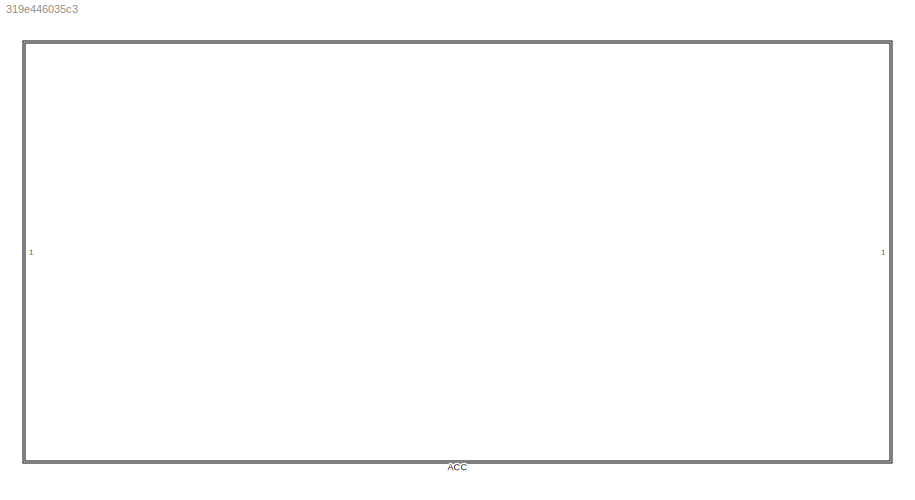
MODEL slx_319e446035c3
KIND library
CONFIG AbsTol = auto
CONFIG EnableMultiTasking = off
CONFIG FixedStep = auto
CONFIG MaxStep = auto
CONFIG MinStep = auto
CONFIG RelTol = 1e-3
CONFIG SampleTimeConstraint = Unconstrained
CONFIG SolverName = VariableStepAuto
CONFIG StartTime = 0.0
CONFIG StopTime = 10.0
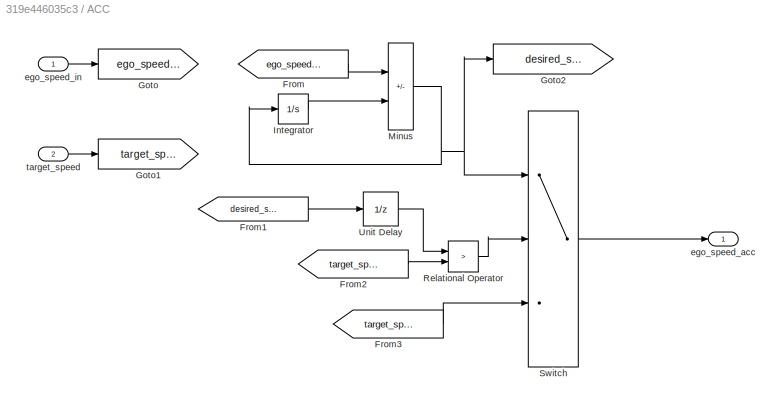
BLOCK [SubSystem] ACC
BLOCK [From] ACC/From
  GotoTag = ego_speed_in
BLOCK [From] ACC/From1
  GotoTag = desired_speed
BLOCK [From] ACC/From2
  GotoTag = target_speed
BLOCK [From] ACC/From3
  GotoTag = target_speed
BLOCK [Goto] ACC/Goto
  GotoTag = ego_speed_in
BLOCK [Goto] ACC/Goto1
  GotoTag = target_speed
BLOCK [Goto] ACC/Goto2
  GotoTag = desired_speed
BLOCK [Integrator] ACC/Integrator
BLOCK [Sum] ACC/Minus
  IconShape = rectangular
  Inputs = +-
BLOCK [RelationalOperator] ACC/Relational Operator
  InputSameDT = off
  Operator = >
  OutDataTypeStr = boolean
  RndMeth = Simplest
BLOCK [Switch] ACC/Switch
  InputSameDT = off
  SaturateOnIntegerOverflow = off
  Threshold = 1
BLOCK [UnitDelay] ACC/Unit Delay
  HasFrameUpgradeWarning = on
  SampleTime = -1
BLOCK [Outport] ACC/ego_speed_acc
BLOCK [Inport] ACC/ego_speed_in
BLOCK [Inport] ACC/target_speed
  Port = 2
LINE ACC/From1:1 -> ACC/Unit Delay:1
LINE ACC/From2:1 -> ACC/Relational Operator:2
LINE ACC/From3:1 -> ACC/Switch:3
LINE ACC/From:1 -> ACC/Minus:1
LINE ACC/Integrator:1 -> ACC/Minus:2
NET ACC/Minus:1 -> ACC/Goto2:1, ACC/Integrator:1, ACC/Switch:1
LINE ACC/Relational Operator:1 -> ACC/Switch:2
LINE ACC/Switch:1 -> ACC/ego_speed_acc:1
LINE ACC/Unit Delay:1 -> ACC/Relational Operator:1
LINE ACC/ego_speed_in:1 -> ACC/Goto:1
LINE ACC/target_speed:1 -> ACC/Goto1:1
note: NET lines group one-source signal fan-out (src -> all destinations, sorted); 1:1 wires keep LINE
